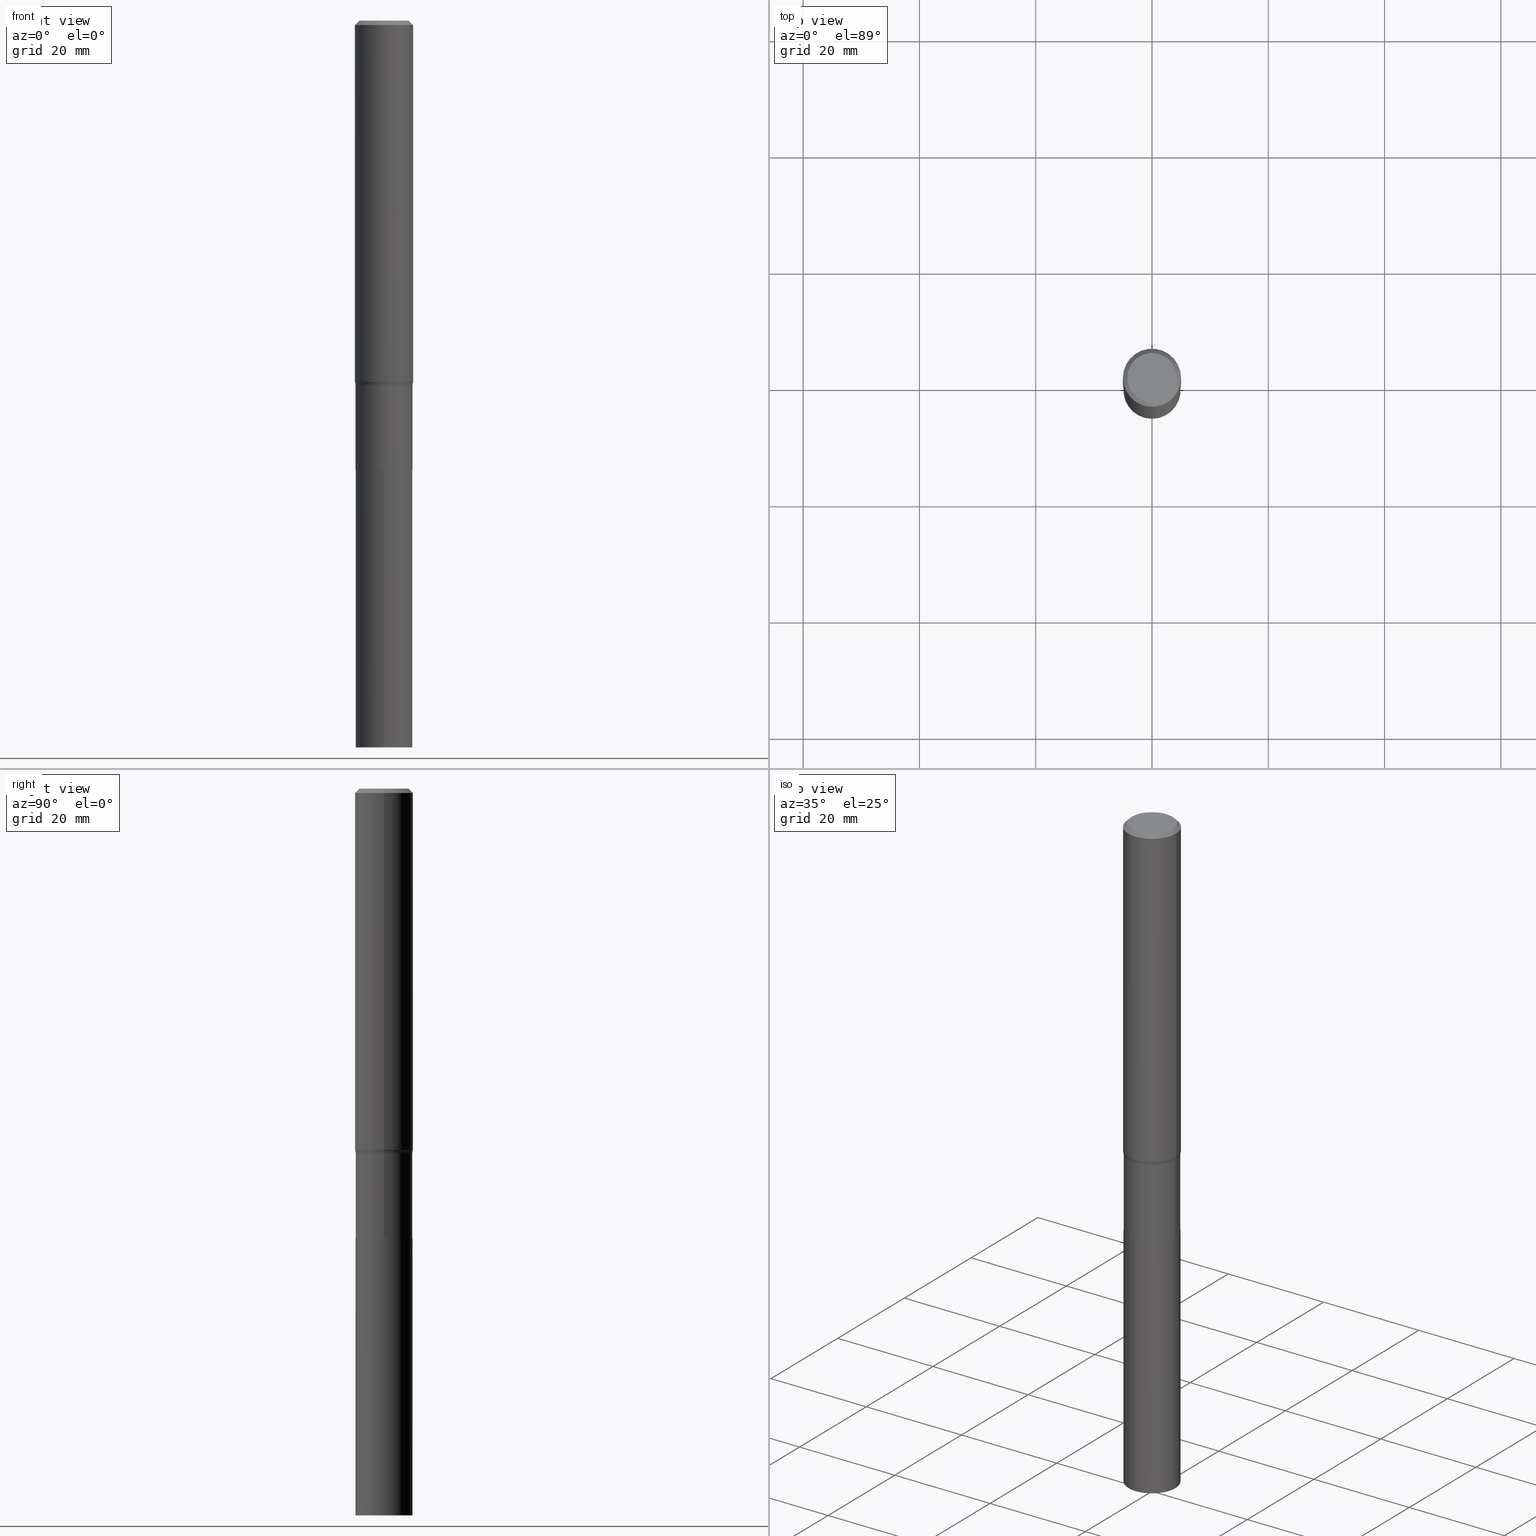
[diagram: canonical four-view strip — front | top / right | iso, engineering-drawing reading convention]
A machine part, canonical four-view strip (front | top / right | iso — engineering-drawing reading convention). The complete STEP part file that produces these views, byte-faithful:
ISO-10303-21;
HEADER;
FILE_DESCRIPTION (( 'STEP AP203' ),
    '1' );
FILE_NAME ('67886.STEP',
    '2024-04-19T16:55:15',
    ( '' ),
    ( '' ),
    'SwSTEP 2.0',
    'SolidWorks 2023',
    '' );
FILE_SCHEMA (( 'CONFIG_CONTROL_DESIGN' ));
ENDSEC;

DATA;
#1 = CARTESIAN_POINT ( 'NONE',  ( -0.1928999999999999049, -8.253980521373779940E-15, -2.471399999999999597 ) ) ;
#2 = EDGE_CURVE ( 'NONE', #200, #80, #162, .T. ) ;
#3 = DATE_TIME_ROLE ( 'classification_date' ) ;
#4 = CONICAL_SURFACE ( 'NONE', #232, 0.1968500000000000250, 0.7853981633974453924 ) ;
#5 = DATE_AND_TIME ( #225, #363 ) ;
#6 = EDGE_LOOP ( 'NONE', ( #153, #83 ) ) ;
#7 = CC_DESIGN_PERSON_AND_ORGANIZATION_ASSIGNMENT ( #259, #255, ( #191 ) ) ;
#8 = VECTOR ( 'NONE', #34, 39.37007874015748143 ) ;
#9 = ORIENTED_EDGE ( 'NONE', *, *, #411, .F. ) ;
#10 = ORIENTED_EDGE ( 'NONE', *, *, #228, .T. ) ;
#11 = DIRECTION ( 'NONE',  ( -2.445468806185136597E-29, 3.491481338843145583E-15, 1.000000000000000000 ) ) ;
#12 = DIRECTION ( 'NONE',  ( -2.445466196410267500E-29, 3.491485076189297312E-15, 1.000000000000000000 ) ) ;
#13 = ORIENTED_EDGE ( 'NONE', *, *, #2, .T. ) ;
#14 = VECTOR ( 'NONE', #81, 39.37007874015748143 ) ;
#15 = CIRCLE ( 'NONE', #302, 0.1968500000000003580 ) ;
#16 = VERTEX_POINT ( 'NONE', #230 ) ;
#17 = DIRECTION ( 'NONE',  ( -2.445466196410267781E-29, 3.491485076189296917E-15, 1.000000000000000000 ) ) ;
#18 = VERTEX_POINT ( 'NONE', #1 ) ;
#19 = LINE ( 'NONE', #169, #68 ) ;
#20 = DIRECTION ( 'NONE',  ( -2.445468806185136597E-29, 3.491481338843145583E-15, 1.000000000000000000 ) ) ;
#21 = VERTEX_POINT ( 'NONE', #295 ) ;
#22 = CARTESIAN_POINT ( 'NONE',  ( 7.439849749057039047E-29, -1.062213367716249950E-14, -3.042299999999999560 ) ) ;
#23 = CIRCLE ( 'NONE', #369, 0.1968500000000000250 ) ;
#24 = CARTESIAN_POINT ( 'NONE',  ( 0.1968500000000000250, -1.477690918335233294E-15, -0.02952750000000018901 ) ) ;
#25 = EDGE_CURVE ( 'NONE', #16, #200, #340, .T. ) ;
#26 = DIRECTION ( 'NONE',  ( 1.000000000000000000, -6.982962677686265922E-15, 0.000000000000000000 ) ) ;
#27 =( NAMED_UNIT ( * ) PLANE_ANGLE_UNIT ( ) SI_UNIT ( $, .RADIAN. ) );
#28 = DIRECTION ( 'NONE',  ( -2.445468806185136597E-29, 3.491481338843145583E-15, 1.000000000000000000 ) ) ;
#29 = FACE_OUTER_BOUND ( 'NONE', #430, .T. ) ;
#30 = ADVANCED_FACE ( 'NONE', ( #339 ), #306, .F. ) ;
#31 = DIRECTION ( 'NONE',  ( -2.445468806185136597E-29, 3.491481338843145583E-15, 1.000000000000000000 ) ) ;
#32 = ADVANCED_FACE ( 'NONE', ( #115 ), #120, .T. ) ;
#33 = DIRECTION ( 'NONE',  ( -2.445468806185136597E-29, 3.491481338843145583E-15, 1.000000000000000000 ) ) ;
#34 = DIRECTION ( 'NONE',  ( -2.445468806185136877E-29, 3.491481338843145188E-15, 1.000000000000000000 ) ) ;
#35 = PRODUCT ( '67886', '67886', '', ( #218 ) ) ;
#36 = VECTOR ( 'NONE', #391, 39.37007874015748143 ) ;
#37 = APPROVAL_PERSON_ORGANIZATION ( #399, #299, #143 ) ;
#38 = ORIENTED_EDGE ( 'NONE', *, *, #187, .T. ) ;
#39 = DIRECTION ( 'NONE',  ( 1.000000000000000000, -6.982962677686267499E-15, 4.876294436782262290E-29 ) ) ;
#40 = CC_DESIGN_PERSON_AND_ORGANIZATION_ASSIGNMENT ( #358, #152, ( #303 ) ) ;
#41 = EDGE_LOOP ( 'NONE', ( #334, #199 ) ) ;
#42 = DESIGN_CONTEXT ( 'detailed design', #119, 'design' ) ;
#43 = DIRECTION ( 'NONE',  ( -2.445466196410267781E-29, 3.491485076189296917E-15, 1.000000000000000000 ) ) ;
#44 = CIRCLE ( 'NONE', #335, 0.1928999999999999881 ) ;
#45 = ORIENTED_EDGE ( 'NONE', *, *, #184, .T. ) ;
#46 = DIRECTION ( 'NONE',  ( 1.000000000000000000, -6.982962677686267499E-15, 4.876294436782262290E-29 ) ) ;
#47 = DIRECTION ( 'NONE',  ( 1.000000000000000000, -6.982962677686264344E-15, 4.883557194083112901E-29 ) ) ;
#48 = AXIS2_PLACEMENT_3D ( 'NONE', #367, #292, #39 ) ;
#49 = AXIS2_PLACEMENT_3D ( 'NONE', #90, #96, #26 ) ;
#50 = EDGE_CURVE ( 'NONE', #21, #104, #234, .T. ) ;
#51 = EDGE_LOOP ( 'NONE', ( #159, #268, #207, #226 ) ) ;
#52 = ORIENTED_EDGE ( 'NONE', *, *, #290, .F. ) ;
#53 = PLANE ( 'NONE',  #76 ) ;
#54 = CARTESIAN_POINT ( 'NONE',  ( 7.439849749057039047E-29, -1.062213367716249950E-14, -3.042299999999999560 ) ) ;
#55 = EDGE_CURVE ( 'NONE', #98, #21, #190, .T. ) ;
#56 = CARTESIAN_POINT ( 'NONE',  ( 7.439849749057039047E-29, -1.062213367716249950E-14, -3.042299999999999560 ) ) ;
#57 = DIRECTION ( 'NONE',  ( -2.445468806185136597E-29, 3.491481338843145583E-15, 1.000000000000000000 ) ) ;
#58 = CARTESIAN_POINT ( 'NONE',  ( 7.220858017463208610E-31, -1.030947152326916486E-16, -0.02952750000000018901 ) ) ;
#59 = EDGE_CURVE ( 'NONE', #77, #18, #130, .T. ) ;
#60 = CIRCLE ( 'NONE', #327, 0.1923999999999999877 ) ;
#61 = LOCAL_TIME ( 12, 55, 15.00000000000000000, #66 ) ;
#62 = CARTESIAN_POINT ( 'NONE',  ( -0.1923999999999999877, -9.255049453560068999E-15, -3.042299999999999560 ) ) ;
#63 = FACE_OUTER_BOUND ( 'NONE', #6, .T. ) ;
#64 = ORIENTED_EDGE ( 'NONE', *, *, #265, .T. ) ;
#65 = DIRECTION ( 'NONE',  ( 1.000000000000000000, -6.982962677686267499E-15, 0.000000000000000000 ) ) ;
#66 = COORDINATED_UNIVERSAL_TIME_OFFSET ( 5, 0, .BEHIND. ) ;
#67 = CARTESIAN_POINT ( 'NONE',  ( 7.438627014653946245E-29, -1.062038793649307721E-14, -3.041799999999999393 ) ) ;
#68 = VECTOR ( 'NONE', #345, 39.37007874015748143 ) ;
#69 = CIRCLE ( 'NONE', #49, 0.1968500000000000250 ) ;
#70 = CALENDAR_DATE ( 2024, 19, 4 ) ;
#71 = ADVANCED_FACE ( 'NONE', ( #237 ), #350, .T. ) ;
#72 = MANIFOLD_SOLID_BREP ( 'Body-Move/Copy2[1]', #223 ) ;
#73 = SHAPE_DEFINITION_REPRESENTATION ( #331, #193 ) ;
#74 = PERSON_AND_ORGANIZATION ( #312, #396 ) ;
#75 = APPROVAL_DATE_TIME ( #254, #299 ) ;
#76 = AXIS2_PLACEMENT_3D ( 'NONE', #22, #449, #209 ) ;
#77 = VERTEX_POINT ( 'NONE', #458 ) ;
#78 = AXIS2_PLACEMENT_3D ( 'NONE', #454, #236, #137 ) ;
#79 = EDGE_CURVE ( 'NONE', #459, #18, #149, .T. ) ;
#80 = VERTEX_POINT ( 'NONE', #24 ) ;
#81 = DIRECTION ( 'NONE',  ( 0.7071067811865454633, -7.319954787623248157E-15, -0.7071067811865495711 ) ) ;
#82 = ORIENTED_EDGE ( 'NONE', *, *, #59, .F. ) ;
#83 = ORIENTED_EDGE ( 'NONE', *, *, #146, .F. ) ;
#84 = ORIENTED_EDGE ( 'NONE', *, *, #55, .T. ) ;
#85 = ADVANCED_FACE ( 'NONE', ( #29 ), #402, .F. ) ;
#86 = AXIS2_PLACEMENT_3D ( 'NONE', #361, #328, #461 ) ;
#87 = EDGE_LOOP ( 'NONE', ( #417, #466, #38, #298 ) ) ;
#88 = DIRECTION ( 'NONE',  ( -6.982962677686265133E-15, -1.000000000000000000, 2.832398127179122126E-15 ) ) ;
#89 = ORIENTED_EDGE ( 'NONE', *, *, #278, .T. ) ;
#90 = CARTESIAN_POINT ( 'NONE',  ( 7.220858017463208610E-31, -1.030947152326916486E-16, -0.02952750000000018901 ) ) ;
#91 = CARTESIAN_POINT ( 'NONE',  ( -1.347013500525606121E-15, -0.1929000000000105908, -3.042299999999998672 ) ) ;
#92 = ADVANCED_FACE ( 'NONE', ( #313 ), #239, .T. ) ;
#93 = FACE_OUTER_BOUND ( 'NONE', #372, .T. ) ;
#94 = VECTOR ( 'NONE', #309, 39.37007874015748143 ) ;
#95 = DIRECTION ( 'NONE',  ( 2.445468806185136597E-29, -3.491481338843145583E-15, -1.000000000000000000 ) ) ;
#96 = DIRECTION ( 'NONE',  ( -2.445468806185136597E-29, 3.491481338843145583E-15, 1.000000000000000000 ) ) ;
#97 = EDGE_CURVE ( 'NONE', #264, #194, #311, .T. ) ;
#98 = VERTEX_POINT ( 'NONE', #270 ) ;
#99 = DIRECTION ( 'NONE',  ( -6.982962677686265133E-15, -1.000000000000000000, 5.664796254358244252E-15 ) ) ;
#100 = DIRECTION ( 'NONE',  ( -6.982962677686265133E-15, -1.000000000000000000, 2.832398127179122126E-15 ) ) ;
#101 = CC_DESIGN_DATE_AND_TIME_ASSIGNMENT ( #5, #431, ( #189 ) ) ;
#102 = CARTESIAN_POINT ( 'NONE',  ( -7.432330705901042928E-29, -4.506078891942200723E-14, -4.921300000000000452 ) ) ;
#103 = DIRECTION ( 'NONE',  ( 7.105427357601001859E-15, 1.000000000000000000, -3.491481338843145583E-15 ) ) ;
#104 = VERTEX_POINT ( 'NONE', #244 ) ;
#105 = APPROVAL_DATE_TIME ( #183, #428 ) ;
#106 = AXIS2_PLACEMENT_3D ( 'NONE', #165, #341, #288 ) ;
#107 = APPROVAL_STATUS ( 'not_yet_approved' ) ;
#108 = CARTESIAN_POINT ( 'NONE',  ( 1.370636937281307327E-15, 0.1928999999999893578, -3.042300000000000004 ) ) ;
#109 = ADVANCED_FACE ( 'NONE', ( #243 ), #368, .F. ) ;
#110 = COORDINATED_UNIVERSAL_TIME_OFFSET ( 5, 0, .BEHIND. ) ;
#111 = EDGE_LOOP ( 'NONE', ( #160, #231, #321, #263 ) ) ;
#112 = CC_DESIGN_PERSON_AND_ORGANIZATION_ASSIGNMENT ( #291, #401, ( #189 ) ) ;
#113 = ORIENTED_EDGE ( 'NONE', *, *, #347, .F. ) ;
#114 = ADVANCED_FACE ( 'NONE', ( #381 ), #4, .T. ) ;
#115 = FACE_OUTER_BOUND ( 'NONE', #229, .T. ) ;
#116 = ORIENTED_EDGE ( 'NONE', *, *, #187, .F. ) ;
#117 = EDGE_CURVE ( 'NONE', #459, #123, #432, .T. ) ;
#118 = ORIENTED_EDGE ( 'NONE', *, *, #25, .T. ) ;
#119 = APPLICATION_CONTEXT ( 'configuration controlled 3d designs of mechanical parts and assemblies' ) ;
#120 = CYLINDRICAL_SURFACE ( 'NONE', #282, 0.1928999999999999881 ) ;
#121 = ORIENTED_EDGE ( 'NONE', *, *, #265, .F. ) ;
#122 = LOCAL_TIME ( 12, 55, 15.00000000000000000, #110 ) ;
#123 = VERTEX_POINT ( 'NONE', #343 ) ;
#124 = DIRECTION ( 'NONE',  ( -2.445468806185136877E-29, 3.491481338843145188E-15, 1.000000000000000000 ) ) ;
#125 = DIRECTION ( 'NONE',  ( 0.7071067811864267805, -2.468850131080992517E-15, 0.7071067811866682540 ) ) ;
#126 = DIRECTION ( 'NONE',  ( -2.445468806185136597E-29, 3.491481338843145583E-15, 1.000000000000000000 ) ) ;
#127 = CARTESIAN_POINT ( 'NONE',  ( 0.1968500000000001915, -1.374596203102542989E-15, 9.598753983154309266E-30 ) ) ;
#128 = DIRECTION ( 'NONE',  ( -6.982962677686265133E-15, -1.000000000000000000, 2.832398127179122126E-15 ) ) ;
#129 = ORIENTED_EDGE ( 'NONE', *, *, #468, .F. ) ;
#130 = CIRCLE ( 'NONE', #140, 0.1928999999999999049 ) ;
#131 = DIRECTION ( 'NONE',  ( 1.000000000000000000, -6.982962677686267499E-15, 0.000000000000000000 ) ) ;
#132 = AXIS2_PLACEMENT_3D ( 'NONE', #58, #211, #457 ) ;
#133 = EDGE_CURVE ( 'NONE', #104, #77, #414, .T. ) ;
#134 = CARTESIAN_POINT ( 'NONE',  ( 6.043731607605946476E-29, -8.628846980816948628E-15, -2.471399999999999597 ) ) ;
#135 = DIRECTION ( 'NONE',  ( 0.000000000000000000, 0.000000000000000000, 1.000000000000000000 ) ) ;
#136 = CARTESIAN_POINT ( 'NONE',  ( -0.1928999999999999881, -8.253980521373778363E-15, -3.041799999999999393 ) ) ;
#137 = DIRECTION ( 'NONE',  ( -6.982962677686265133E-15, -1.000000000000000000, 2.832398127179122126E-15 ) ) ;
#138 = DIRECTION ( 'NONE',  ( 1.000000000000000000, -6.982962677686266711E-15, 0.000000000000000000 ) ) ;
#139 = ORIENTED_EDGE ( 'NONE', *, *, #416, .F. ) ;
#140 = AXIS2_PLACEMENT_3D ( 'NONE', #163, #208, #131 ) ;
#141 = CC_DESIGN_APPROVAL ( #364, ( #303 ) ) ;
#142 = CARTESIAN_POINT ( 'NONE',  ( 1.203488073211193522E-28, -1.718263413532219501E-14, -4.921300000000000452 ) ) ;
#143 = APPROVAL_ROLE ( '' ) ;
#144 = ADVANCED_FACE ( 'NONE', ( #348 ), #53, .F. ) ;
#145 = ORIENTED_EDGE ( 'NONE', *, *, #228, .F. ) ;
#146 = EDGE_CURVE ( 'NONE', #405, #264, #362, .T. ) ;
#147 = COORDINATED_UNIVERSAL_TIME_OFFSET ( 5, 0, .BEHIND. ) ;
#148 = FACE_OUTER_BOUND ( 'NONE', #111, .T. ) ;
#149 = CIRCLE ( 'NONE', #174, 0.08000000000000000167 ) ;
#150 = EDGE_CURVE ( 'NONE', #194, #410, #437, .T. ) ;
#151 = COORDINATED_UNIVERSAL_TIME_OFFSET ( 5, 0, .BEHIND. ) ;
#152 = PERSON_AND_ORGANIZATION_ROLE ( 'creator' ) ;
#153 = ORIENTED_EDGE ( 'NONE', *, *, #269, .F. ) ;
#154 = ORIENTED_EDGE ( 'NONE', *, *, #198, .T. ) ;
#155 = VERTEX_POINT ( 'NONE', #136 ) ;
#156 = CIRCLE ( 'NONE', #462, 0.08000000000000000167 ) ;
#157 = DIRECTION ( 'NONE',  ( 6.982962677686265922E-15, 1.000000000000000000, -3.491485076189297312E-15 ) ) ;
#158 = DIRECTION ( 'NONE',  ( 1.000000000000000000, -6.982962677686266711E-15, 0.000000000000000000 ) ) ;
#159 = ORIENTED_EDGE ( 'NONE', *, *, #269, .T. ) ;
#160 = ORIENTED_EDGE ( 'NONE', *, *, #337, .T. ) ;
#161 = CARTESIAN_POINT ( 'NONE',  ( 1.370636937281330401E-15, 0.1928999999999828074, -4.921300000000002228 ) ) ;
#162 = LINE ( 'NONE', #374, #14 ) ;
#163 = CARTESIAN_POINT ( 'NONE',  ( 6.043731607605946476E-29, -8.628846980816948628E-15, -2.471399999999999597 ) ) ;
#164 = CARTESIAN_POINT ( 'NONE',  ( 7.220858017463208610E-31, -1.030947152326916486E-16, -0.02952750000000018901 ) ) ;
#165 = CARTESIAN_POINT ( 'NONE',  ( -5.008488096090108951E-47, 7.150793614331948590E-33, 2.048068690724054183E-18 ) ) ;
#166 = AXIS2_PLACEMENT_3D ( 'NONE', #247, #11, #46 ) ;
#167 = CARTESIAN_POINT ( 'NONE',  ( 0.1928999999999999326, -1.347013500525680471E-15, 9.406145000510357801E-30 ) ) ;
#168 = APPLICATION_CONTEXT ( 'configuration controlled 3d designs of mechanical parts and assemblies' ) ;
#169 = CARTESIAN_POINT ( 'NONE',  ( -0.1928999999999999326, 1.370636937281232780E-15, -9.488625789101710361E-30 ) ) ;
#170 =( NAMED_UNIT ( * ) SI_UNIT ( $, .STERADIAN. ) SOLID_ANGLE_UNIT ( ) );
#171 = ORIENTED_EDGE ( 'NONE', *, *, #50, .T. ) ;
#172 = CARTESIAN_POINT ( 'NONE',  ( 0.2728999999999998649, -1.053449749555752977E-14, -2.471399999999999597 ) ) ;
#173 = CARTESIAN_POINT ( 'NONE',  ( 0.000000000000000000, 0.000000000000000000, 0.000000000000000000 ) ) ;
#174 = AXIS2_PLACEMENT_3D ( 'NONE', #355, #103, #397 ) ;
#175 = VECTOR ( 'NONE', #253, 39.37007874015748143 ) ;
#176 = ORIENTED_EDGE ( 'NONE', *, *, #392, .F. ) ;
#177 = DIRECTION ( 'NONE',  ( -6.982962677686266711E-15, -1.000000000000000000, 3.491481338843145583E-15 ) ) ;
#178 = DIRECTION ( 'NONE',  ( -2.445466196410267220E-29, 3.491485076189297312E-15, 1.000000000000000000 ) ) ;
#179 = PLANE ( 'NONE',  #106 ) ;
#180 = CARTESIAN_POINT ( 'NONE',  ( 6.043731607605946476E-29, -8.628846980816948628E-15, -2.471399999999999597 ) ) ;
#181 = CYLINDRICAL_SURFACE ( 'NONE', #233, 0.1968500000000001915 ) ;
#182 = DIRECTION ( 'NONE',  ( 1.000000000000000000, -6.982962677686266711E-15, 4.876176775795935793E-29 ) ) ;
#183 = DATE_AND_TIME ( #400, #267 ) ;
#184 = EDGE_CURVE ( 'NONE', #155, #18, #19, .T. ) ;
#185 = CIRCLE ( 'NONE', #86, 0.1928999999999999881 ) ;
#186 = APPROVAL_ROLE ( '' ) ;
#187 = EDGE_CURVE ( 'NONE', #123, #77, #156, .T. ) ;
#188 = DIRECTION ( 'NONE',  ( 1.000000000000000000, -6.982962677686264344E-15, 0.000000000000000000 ) ) ;
#189 = PRODUCT_DEFINITION ( 'UNKNOWN', '', #303, #42 ) ;
#190 = CIRCLE ( 'NONE', #195, 0.1923999999999999877 ) ;
#191 = SECURITY_CLASSIFICATION ( '', '', #217 ) ;
#192 = PERSON_AND_ORGANIZATION ( #312, #396 ) ;
#193 = ADVANCED_BREP_SHAPE_REPRESENTATION ( '67886', ( #72, #376, #249 ), #294 ) ;
#194 = VERTEX_POINT ( 'NONE', #246 ) ;
#195 = AXIS2_PLACEMENT_3D ( 'NONE', #54, #387, #158 ) ;
#196 = DIRECTION ( 'NONE',  ( -2.445466196410267781E-29, 3.491485076189296917E-15, 1.000000000000000000 ) ) ;
#197 = ORIENTED_EDGE ( 'NONE', *, *, #25, .F. ) ;
#198 = EDGE_CURVE ( 'NONE', #123, #80, #385, .T. ) ;
#199 = ORIENTED_EDGE ( 'NONE', *, *, #443, .T. ) ;
#200 = VERTEX_POINT ( 'NONE', #272 ) ;
#201 = LINE ( 'NONE', #62, #175 ) ;
#202 = DIRECTION ( 'NONE',  ( -6.982962677686265133E-15, -1.000000000000000000, 5.664796254358244252E-15 ) ) ;
#203 = DIRECTION ( 'NONE',  ( -1.000000000000000000, 6.982962677686265922E-15, 0.000000000000000000 ) ) ;
#204 = VECTOR ( 'NONE', #12, 39.37007874015748143 ) ;
#205 = CC_DESIGN_SECURITY_CLASSIFICATION ( #191, ( #303 ) ) ;
#206 = ADVANCED_FACE ( 'NONE', ( #93 ), #279, .T. ) ;
#207 = ORIENTED_EDGE ( 'NONE', *, *, #150, .F. ) ;
#208 = DIRECTION ( 'NONE',  ( -2.445468806185136597E-29, 3.491481338843145583E-15, 1.000000000000000000 ) ) ;
#209 = DIRECTION ( 'NONE',  ( 1.000000000000000000, -6.982962677686265922E-15, 4.876176775795935793E-29 ) ) ;
#210 = DIRECTION ( 'NONE',  ( 1.000000000000000000, -6.982962677686269866E-15, 0.000000000000000000 ) ) ;
#211 = DIRECTION ( 'NONE',  ( 2.445468806185136597E-29, -3.491481338843145583E-15, -1.000000000000000000 ) ) ;
#212 = AXIS2_PLACEMENT_3D ( 'NONE', #273, #57, #453 ) ;
#213 = FACE_OUTER_BOUND ( 'NONE', #344, .T. ) ;
#214 = DIRECTION ( 'NONE',  ( 1.000000000000000000, -6.982962677686266711E-15, 0.000000000000000000 ) ) ;
#215 =( LENGTH_UNIT ( ) NAMED_UNIT ( * ) SI_UNIT ( $, .METRE. ) );
#216 = EDGE_LOOP ( 'NONE', ( #64, #45, #82, #346 ) ) ;
#217 = SECURITY_CLASSIFICATION_LEVEL ( 'unclassified' ) ;
#218 = MECHANICAL_CONTEXT ( 'NONE', #168, 'mechanical' ) ;
#219 = DIRECTION ( 'NONE',  ( 1.000000000000000000, -6.982962677686267499E-15, 4.876176775795936353E-29 ) ) ;
#220 = PRODUCT_RELATED_PRODUCT_CATEGORY ( 'detail', '', ( #35 ) ) ;
#221 = DIRECTION ( 'NONE',  ( -2.445468806185136597E-29, 3.491481338843145583E-15, 1.000000000000000000 ) ) ;
#222 = CARTESIAN_POINT ( 'NONE',  ( 7.439849749057039047E-29, -1.062213367716249950E-14, -3.042299999999999560 ) ) ;
#223 = CLOSED_SHELL ( 'NONE', ( #310, #441, #32, #30 ) ) ;
#224 = AXIS2_PLACEMENT_3D ( 'NONE', #134, #421, #65 ) ;
#225 = CALENDAR_DATE ( 2024, 19, 4 ) ;
#226 = ORIENTED_EDGE ( 'NONE', *, *, #97, .F. ) ;
#227 = DIRECTION ( 'NONE',  ( 1.000000000000000000, -6.982962677686266711E-15, 4.876176775795935793E-29 ) ) ;
#228 = EDGE_CURVE ( 'NONE', #155, #104, #44, .T. ) ;
#229 = EDGE_LOOP ( 'NONE', ( #52, #388, #366, #300 ) ) ;
#230 = CARTESIAN_POINT ( 'NONE',  ( -0.1673224999999999851, 1.219954130253505263E-15, 4.096137381439757534E-18 ) ) ;
#231 = ORIENTED_EDGE ( 'NONE', *, *, #468, .T. ) ;
#232 = AXIS2_PLACEMENT_3D ( 'NONE', #164, #95, #203 ) ;
#233 = AXIS2_PLACEMENT_3D ( 'NONE', #373, #28, #182 ) ;
#234 = LINE ( 'NONE', #447, #266 ) ;
#235 = ORIENTED_EDGE ( 'NONE', *, *, #184, .F. ) ;
#236 = DIRECTION ( 'NONE',  ( -2.445466196410267781E-29, 3.491485076189296917E-15, 1.000000000000000000 ) ) ;
#237 = FACE_OUTER_BOUND ( 'NONE', #284, .T. ) ;
#238 = ADVANCED_FACE ( 'NONE', ( #148 ), #351, .T. ) ;
#239 = CYLINDRICAL_SURFACE ( 'NONE', #407, 0.1928999999999999326 ) ;
#240 = FACE_OUTER_BOUND ( 'NONE', #336, .T. ) ;
#241 = CARTESIAN_POINT ( 'NONE',  ( 5.983017088185907655E-29, -8.542162738100076875E-15, -2.446572646133748030 ) ) ;
#242 = AXIS2_PLACEMENT_3D ( 'NONE', #142, #330, #202 ) ;
#243 = FACE_OUTER_BOUND ( 'NONE', #87, .T. ) ;
#244 = CARTESIAN_POINT ( 'NONE',  ( 0.1928999999999999881, -1.196740143701875827E-14, -3.041799999999999393 ) ) ;
#245 = CARTESIAN_POINT ( 'NONE',  ( 7.439849749057039047E-29, -1.062213367716249950E-14, -3.042299999999999560 ) ) ;
#246 = CARTESIAN_POINT ( 'NONE',  ( -1.347013500525606121E-15, -0.1929000000000105908, -3.042299999999998672 ) ) ;
#247 = CARTESIAN_POINT ( 'NONE',  ( -1.001697619218021790E-46, 1.430158722866389718E-32, 4.096137381448108366E-18 ) ) ;
#248 = AXIS2_PLACEMENT_3D ( 'NONE', #180, #317, #47 ) ;
#249 = AXIS2_PLACEMENT_3D ( 'NONE', #173, #135, #275 ) ;
#250 = ADVANCED_FACE ( 'NONE', ( #240 ), #179, .F. ) ;
#251 = DIRECTION ( 'NONE',  ( -0.7071067811865454633, 2.468850131082235367E-15, -0.7071067811865495711 ) ) ;
#252 = CC_DESIGN_DATE_AND_TIME_ASSIGNMENT ( #297, #3, ( #191 ) ) ;
#253 = DIRECTION ( 'NONE',  ( -0.7071067811864267805, 7.493145998869918709E-15, 0.7071067811866682540 ) ) ;
#254 = DATE_AND_TIME ( #426, #464 ) ;
#255 = PERSON_AND_ORGANIZATION_ROLE ( 'classification_officer' ) ;
#256 = AXIS2_PLACEMENT_3D ( 'NONE', #375, #412, #99 ) ;
#257 = CC_DESIGN_APPROVAL ( #428, ( #189 ) ) ;
#258 = DATE_AND_TIME ( #285, #122 ) ;
#259 = PERSON_AND_ORGANIZATION ( #312, #396 ) ;
#260 = EDGE_LOOP ( 'NONE', ( #380, #262 ) ) ;
#261 = VECTOR ( 'NONE', #251, 39.37007874015748143 ) ;
#262 = ORIENTED_EDGE ( 'NONE', *, *, #55, .F. ) ;
#263 = ORIENTED_EDGE ( 'NONE', *, *, #198, .F. ) ;
#264 = VERTEX_POINT ( 'NONE', #434 ) ;
#265 = EDGE_CURVE ( 'NONE', #104, #155, #185, .T. ) ;
#266 = VECTOR ( 'NONE', #125, 39.37007874015748143 ) ;
#267 = LOCAL_TIME ( 12, 55, 15.00000000000000000, #147 ) ;
#268 = ORIENTED_EDGE ( 'NONE', *, *, #290, .T. ) ;
#269 = EDGE_CURVE ( 'NONE', #264, #405, #438, .T. ) ;
#270 = CARTESIAN_POINT ( 'NONE',  ( -0.1923999999999999877, -9.252400226385957009E-15, -3.042299999999999560 ) ) ;
#271 = DIRECTION ( 'NONE',  ( 1.000000000000000000, -6.982962677686266711E-15, 0.000000000000000000 ) ) ;
#272 = CARTESIAN_POINT ( 'NONE',  ( 0.1673224999999999851, -1.300749711163072397E-15, 4.096137381456741925E-18 ) ) ;
#273 = CARTESIAN_POINT ( 'NONE',  ( 6.043731607605946476E-29, -8.628846980816948628E-15, -2.471399999999999597 ) ) ;
#274 = AXIS2_PLACEMENT_3D ( 'NONE', #56, #31, #214 ) ;
#275 = DIRECTION ( 'NONE',  ( 1.000000000000000000, 0.000000000000000000, 0.000000000000000000 ) ) ;
#276 = DIRECTION ( 'NONE',  ( -2.445468806185136597E-29, 3.491481338843145583E-15, 1.000000000000000000 ) ) ;
#277 = CARTESIAN_POINT ( 'NONE',  ( -0.1968500000000000250, 1.271501487869850120E-15, -0.02952750000000018901 ) ) ;
#278 = EDGE_CURVE ( 'NONE', #21, #98, #60, .T. ) ;
#279 = CYLINDRICAL_SURFACE ( 'NONE', #378, 0.1928999999999999326 ) ;
#280 = LINE ( 'NONE', #277, #261 ) ;
#281 = ORIENTED_EDGE ( 'NONE', *, *, #360, .T. ) ;
#282 = AXIS2_PLACEMENT_3D ( 'NONE', #409, #196, #88 ) ;
#283 = CIRCLE ( 'NONE', #166, 0.1673224999999999851 ) ;
#284 = EDGE_LOOP ( 'NONE', ( #9, #84, #171, #145 ) ) ;
#285 = CALENDAR_DATE ( 2024, 19, 4 ) ;
#286 = ORIENTED_EDGE ( 'NONE', *, *, #117, .T. ) ;
#287 = DIRECTION ( 'NONE',  ( -2.445468806185136597E-29, 3.491481338843145583E-15, 1.000000000000000000 ) ) ;
#288 = DIRECTION ( 'NONE',  ( -1.000000000000000000, 6.982962677686265922E-15, -4.876176775795935793E-29 ) ) ;
#289 = PERSON_AND_ORGANIZATION ( #312, #396 ) ;
#290 = EDGE_CURVE ( 'NONE', #405, #410, #413, .T. ) ;
#291 = PERSON_AND_ORGANIZATION ( #312, #396 ) ;
#292 = DIRECTION ( 'NONE',  ( -2.445468806185136597E-29, 3.491481338843145583E-15, 1.000000000000000000 ) ) ;
#293 = AXIS2_PLACEMENT_3D ( 'NONE', #456, #221, #227 ) ;
#294 =( GEOMETRIC_REPRESENTATION_CONTEXT ( 3 ) GLOBAL_UNCERTAINTY_ASSIGNED_CONTEXT ( ( #320 ) ) GLOBAL_UNIT_ASSIGNED_CONTEXT ( ( #354, #27, #170 ) ) REPRESENTATION_CONTEXT ( 'NONE', 'WORKASPACE' ) );
#295 = CARTESIAN_POINT ( 'NONE',  ( 0.1923999999999999877, -1.196565569634933756E-14, -3.042299999999999560 ) ) ;
#296 = CARTESIAN_POINT ( 'NONE',  ( -0.1968500000000003858, -7.143459362756318299E-15, -2.446572646133748030 ) ) ;
#297 = DATE_AND_TIME ( #70, #61 ) ;
#298 = ORIENTED_EDGE ( 'NONE', *, *, #59, .T. ) ;
#299 = APPROVAL ( #435, 'UNSPECIFIED' ) ;
#300 = ORIENTED_EDGE ( 'NONE', *, *, #443, .F. ) ;
#301 = CLOSED_SHELL ( 'NONE', ( #419, #114, #238, #85, #92, #206, #109, #329, #425, #250, #144, #71 ) ) ;
#302 = AXIS2_PLACEMENT_3D ( 'NONE', #322, #20, #452 ) ;
#303 = PRODUCT_DEFINITION_FORMATION_WITH_SPECIFIED_SOURCE ( 'ANY', '', #35, .NOT_KNOWN. ) ;
#304 = ORIENTED_EDGE ( 'NONE', *, *, #411, .T. ) ;
#305 = ORIENTED_EDGE ( 'NONE', *, *, #117, .F. ) ;
#306 = PLANE ( 'NONE',  #395 ) ;
#307 = CONICAL_SURFACE ( 'NONE', #433, 0.1923999999999999877, 0.7853981633972775267 ) ;
#308 = CARTESIAN_POINT ( 'NONE',  ( 7.439849749057039047E-29, -1.062213367716249950E-14, -3.042299999999999560 ) ) ;
#309 = DIRECTION ( 'NONE',  ( -2.445468806185136877E-29, 3.491481338843145188E-15, 1.000000000000000000 ) ) ;
#310 = ADVANCED_FACE ( 'NONE', ( #460 ), #359, .T. ) ;
#311 = LINE ( 'NONE', #91, #204 ) ;
#312 = PERSON ( 'UNSPECIFIED', 'UNSPECIFIED', 'UNSPECIFIED', ('UNSPECIFIED'), ('UNSPECIFIED'), ('UNSPECIFIED') ) ;
#313 = FACE_OUTER_BOUND ( 'NONE', #216, .T. ) ;
#314 = CARTESIAN_POINT ( 'NONE',  ( 7.220858017463208610E-31, -1.030947152326916486E-16, -0.02952750000000018901 ) ) ;
#315 = AXIS2_PLACEMENT_3D ( 'NONE', #448, #17, #128 ) ;
#316 = DIRECTION ( 'NONE',  ( 1.000000000000000000, -6.982962677686265922E-15, 0.000000000000000000 ) ) ;
#317 = DIRECTION ( 'NONE',  ( -2.445468806185136597E-29, 3.491481338843145583E-15, 1.000000000000000000 ) ) ;
#318 = PLANE ( 'NONE',  #408 ) ;
#319 = EDGE_CURVE ( 'NONE', #16, #427, #280, .T. ) ;
#320 = UNCERTAINTY_MEASURE_WITH_UNIT (LENGTH_MEASURE( 1.000000000000000082E-05 ), #354, 'distance_accuracy_value', 'NONE');
#321 = ORIENTED_EDGE ( 'NONE', *, *, #360, .F. ) ;
#322 = CARTESIAN_POINT ( 'NONE',  ( 5.983017088185907655E-29, -8.542162738100076875E-15, -2.446572646133748030 ) ) ;
#323 = AXIS2_PLACEMENT_3D ( 'NONE', #241, #415, #210 ) ;
#324 = CONICAL_SURFACE ( 'NONE', #132, 0.1968500000000000250, 0.7853981633974453924 ) ;
#325 = APPROVAL_DATE_TIME ( #258, #364 ) ;
#326 = PERSON_AND_ORGANIZATION_ROLE ( 'design_supplier' ) ;
#327 = AXIS2_PLACEMENT_3D ( 'NONE', #308, #126, #271 ) ;
#328 = DIRECTION ( 'NONE',  ( -2.445468806185136597E-29, 3.491481338843145583E-15, 1.000000000000000000 ) ) ;
#329 = ADVANCED_FACE ( 'NONE', ( #213 ), #181, .T. ) ;
#330 = DIRECTION ( 'NONE',  ( -2.445466196410267781E-29, 3.491485076189296917E-15, 1.000000000000000000 ) ) ;
#331 = PRODUCT_DEFINITION_SHAPE ( 'NONE', 'NONE',  #189 ) ;
#332 = ORIENTED_EDGE ( 'NONE', *, *, #319, .T. ) ;
#333 = CARTESIAN_POINT ( 'NONE',  ( 7.439849749057039047E-29, -1.062213367716249950E-14, -3.042299999999999560 ) ) ;
#334 = ORIENTED_EDGE ( 'NONE', *, *, #150, .T. ) ;
#335 = AXIS2_PLACEMENT_3D ( 'NONE', #67, #33, #188 ) ;
#336 = EDGE_LOOP ( 'NONE', ( #118, #371 ) ) ;
#337 = EDGE_CURVE ( 'NONE', #123, #459, #15, .T. ) ;
#338 = DIRECTION ( 'NONE',  ( -2.445468806185136597E-29, 3.491481338843145583E-15, 1.000000000000000000 ) ) ;
#339 = FACE_OUTER_BOUND ( 'NONE', #41, .T. ) ;
#340 = CIRCLE ( 'NONE', #48, 0.1673224999999999851 ) ;
#341 = DIRECTION ( 'NONE',  ( 2.438088387897960049E-29, -3.491481338843145188E-15, -1.000000000000000000 ) ) ;
#342 = APPROVAL_PERSON_ORGANIZATION ( #394, #428, #365 ) ;
#343 = CARTESIAN_POINT ( 'NONE',  ( 0.1968500000000003858, -9.916758941202621639E-15, -2.446572646133748030 ) ) ;
#344 = EDGE_LOOP ( 'NONE', ( #129, #286, #154, #113 ) ) ;
#345 = DIRECTION ( 'NONE',  ( -2.445468806185136877E-29, 3.491481338843145188E-15, 1.000000000000000000 ) ) ;
#346 = ORIENTED_EDGE ( 'NONE', *, *, #133, .F. ) ;
#347 = EDGE_CURVE ( 'NONE', #427, #80, #69, .T. ) ;
#348 = FACE_OUTER_BOUND ( 'NONE', #260, .T. ) ;
#349 = CARTESIAN_POINT ( 'NONE',  ( -0.1968500000000000250, -2.923925351322623732E-15, -0.02952750000000018901 ) ) ;
#350 = CONICAL_SURFACE ( 'NONE', #274, 0.1923999999999999877, 0.7853981633972775267 ) ;
#351 = CYLINDRICAL_SURFACE ( 'NONE', #293, 0.1968500000000001915 ) ;
#352 = FACE_OUTER_BOUND ( 'NONE', #450, .T. ) ;
#353 = ORIENTED_EDGE ( 'NONE', *, *, #50, .F. ) ;
#354 =( CONVERSION_BASED_UNIT ( 'INCH', #382 ) LENGTH_UNIT ( ) NAMED_UNIT ( #406 ) );
#355 = CARTESIAN_POINT ( 'NONE',  ( -0.2728999999999998649, -6.689775854927636575E-15, -2.471399999999999597 ) ) ;
#356 = APPROVAL_STATUS ( 'not_yet_approved' ) ;
#357 = CARTESIAN_POINT ( 'NONE',  ( -0.1968500000000001915, 1.398703375343758577E-15, -9.682923725166790684E-30 ) ) ;
#358 = PERSON_AND_ORGANIZATION ( #312, #396 ) ;
#359 = CYLINDRICAL_SURFACE ( 'NONE', #451, 0.1928999999999999881 ) ;
#360 = EDGE_CURVE ( 'NONE', #80, #427, #23, .T. ) ;
#361 = CARTESIAN_POINT ( 'NONE',  ( 7.438627014653946245E-29, -1.062038793649307721E-14, -3.041799999999999393 ) ) ;
#362 = CIRCLE ( 'NONE', #256, 0.1928999999999999881 ) ;
#363 = LOCAL_TIME ( 12, 55, 15.00000000000000000, #463 ) ;
#364 = APPROVAL ( #107, 'UNSPECIFIED' ) ;
#365 = APPROVAL_ROLE ( '' ) ;
#366 = ORIENTED_EDGE ( 'NONE', *, *, #97, .T. ) ;
#367 = CARTESIAN_POINT ( 'NONE',  ( -1.001697619218021790E-46, 1.430158722866389718E-32, 4.096137381448108366E-18 ) ) ;
#368 = TOROIDAL_SURFACE ( 'NONE', #212, 0.2728999999999998649, 0.08000000000000000167 ) ;
#369 = AXIS2_PLACEMENT_3D ( 'NONE', #314, #445, #316 ) ;
#370 = DIRECTION ( 'NONE',  ( 2.445466196410267220E-29, -3.491485076189297312E-15, -1.000000000000000000 ) ) ;
#371 = ORIENTED_EDGE ( 'NONE', *, *, #392, .T. ) ;
#372 = EDGE_LOOP ( 'NONE', ( #235, #10, #390, #139 ) ) ;
#373 = CARTESIAN_POINT ( 'NONE',  ( 0.000000000000000000, 0.000000000000000000, 0.000000000000000000 ) ) ;
#374 = CARTESIAN_POINT ( 'NONE',  ( 0.1968500000000000250, -1.453583746094017706E-15, -0.02952750000000018901 ) ) ;
#375 = CARTESIAN_POINT ( 'NONE',  ( 1.203488073211193522E-28, -1.718263413532219501E-14, -4.921300000000000452 ) ) ;
#376 = MANIFOLD_SOLID_BREP ( 'Body-Move/Copy2[2]', #301 ) ;
#377 = CC_DESIGN_PERSON_AND_ORGANIZATION_ASSIGNMENT ( #192, #326, ( #303 ) ) ;
#378 = AXIS2_PLACEMENT_3D ( 'NONE', #398, #287, #219 ) ;
#379 = APPROVAL_PERSON_ORGANIZATION ( #74, #364, #186 ) ;
#380 = ORIENTED_EDGE ( 'NONE', *, *, #278, .F. ) ;
#381 = FACE_OUTER_BOUND ( 'NONE', #440, .T. ) ;
#382 = LENGTH_MEASURE_WITH_UNIT ( LENGTH_MEASURE( 0.02539999999999999897 ), #215 );
#383 = DIRECTION ( 'NONE',  ( 1.000000000000000000, -6.982962677686267499E-15, 4.876176775795936353E-29 ) ) ;
#384 = FACE_OUTER_BOUND ( 'NONE', #439, .T. ) ;
#385 = LINE ( 'NONE', #127, #422 ) ;
#386 = CARTESIAN_POINT ( 'NONE',  ( 1.370636937281353870E-15, 0.1928999999999893855, -3.042300000000000004 ) ) ;
#387 = DIRECTION ( 'NONE',  ( -2.445468806185136597E-29, 3.491481338843145583E-15, 1.000000000000000000 ) ) ;
#388 = ORIENTED_EDGE ( 'NONE', *, *, #146, .T. ) ;
#389 = DIRECTION ( 'NONE',  ( -6.982962677686265922E-15, -1.000000000000000000, 3.491485076189297312E-15 ) ) ;
#390 = ORIENTED_EDGE ( 'NONE', *, *, #133, .T. ) ;
#391 = DIRECTION ( 'NONE',  ( -2.445466196410267500E-29, 3.491485076189297312E-15, 1.000000000000000000 ) ) ;
#392 = EDGE_CURVE ( 'NONE', #200, #16, #283, .T. ) ;
#393 = PERSON_AND_ORGANIZATION_ROLE ( 'design_owner' ) ;
#394 = PERSON_AND_ORGANIZATION ( #312, #396 ) ;
#395 = AXIS2_PLACEMENT_3D ( 'NONE', #333, #370, #157 ) ;
#396 = ORGANIZATION ( 'UNSPECIFIED', 'UNSPECIFIED', '' ) ;
#397 = DIRECTION ( 'NONE',  ( -1.000000000000000000, 7.105427357600997914E-15, 0.000000000000000000 ) ) ;
#398 = CARTESIAN_POINT ( 'NONE',  ( 0.000000000000000000, 0.000000000000000000, 0.000000000000000000 ) ) ;
#399 = PERSON_AND_ORGANIZATION ( #312, #396 ) ;
#400 = CALENDAR_DATE ( 2024, 19, 4 ) ;
#401 = PERSON_AND_ORGANIZATION_ROLE ( 'creator' ) ;
#402 = TOROIDAL_SURFACE ( 'NONE', #248, 0.2728999999999998649, 0.08000000000000000167 ) ;
#403 = CC_DESIGN_APPROVAL ( #299, ( #191 ) ) ;
#404 = ORIENTED_EDGE ( 'NONE', *, *, #79, .T. ) ;
#405 = VERTEX_POINT ( 'NONE', #161 ) ;
#406 = DIMENSIONAL_EXPONENTS ( 1.000000000000000000, 0.000000000000000000, 0.000000000000000000, 0.000000000000000000, 0.000000000000000000, 0.000000000000000000, 0.000000000000000000 ) ;
#407 = AXIS2_PLACEMENT_3D ( 'NONE', #418, #276, #383 ) ;
#408 = AXIS2_PLACEMENT_3D ( 'NONE', #102, #178, #389 ) ;
#409 = CARTESIAN_POINT ( 'NONE',  ( 7.439849749057039047E-29, -1.062213367716249950E-14, -3.042299999999999560 ) ) ;
#410 = VERTEX_POINT ( 'NONE', #386 ) ;
#411 = EDGE_CURVE ( 'NONE', #98, #155, #201, .T. ) ;
#412 = DIRECTION ( 'NONE',  ( -2.445466196410267781E-29, 3.491485076189296917E-15, 1.000000000000000000 ) ) ;
#413 = LINE ( 'NONE', #108, #36 ) ;
#414 = LINE ( 'NONE', #167, #94 ) ;
#415 = DIRECTION ( 'NONE',  ( -2.445468806185136597E-29, 3.491481338843145583E-15, 1.000000000000000000 ) ) ;
#416 = EDGE_CURVE ( 'NONE', #18, #77, #423, .T. ) ;
#417 = ORIENTED_EDGE ( 'NONE', *, *, #79, .F. ) ;
#418 = CARTESIAN_POINT ( 'NONE',  ( 0.000000000000000000, 0.000000000000000000, 0.000000000000000000 ) ) ;
#419 = ADVANCED_FACE ( 'NONE', ( #352 ), #307, .T. ) ;
#420 = DIRECTION ( 'NONE',  ( 1.000000000000000000, -6.982962677686259611E-15, 0.000000000000000000 ) ) ;
#421 = DIRECTION ( 'NONE',  ( -2.445468806185136597E-29, 3.491481338843145583E-15, 1.000000000000000000 ) ) ;
#422 = VECTOR ( 'NONE', #124, 39.37007874015748143 ) ;
#423 = CIRCLE ( 'NONE', #224, 0.1928999999999999049 ) ;
#424 = ORIENTED_EDGE ( 'NONE', *, *, #319, .F. ) ;
#425 = ADVANCED_FACE ( 'NONE', ( #384 ), #324, .T. ) ;
#426 = CALENDAR_DATE ( 2024, 19, 4 ) ;
#427 = VERTEX_POINT ( 'NONE', #349 ) ;
#428 = APPROVAL ( #356, 'UNSPECIFIED' ) ;
#429 = LINE ( 'NONE', #357, #8 ) ;
#430 = EDGE_LOOP ( 'NONE', ( #305, #404, #442, #116 ) ) ;
#431 = DATE_TIME_ROLE ( 'creation_date' ) ;
#432 = CIRCLE ( 'NONE', #323, 0.1968500000000003580 ) ;
#433 = AXIS2_PLACEMENT_3D ( 'NONE', #245, #338, #138 ) ;
#434 = CARTESIAN_POINT ( 'NONE',  ( -1.347013500525560170E-15, -0.1929000000000171411, -4.921299999999999564 ) ) ;
#435 = APPROVAL_STATUS ( 'not_yet_approved' ) ;
#436 = ORIENTED_EDGE ( 'NONE', *, *, #2, .F. ) ;
#437 = CIRCLE ( 'NONE', #315, 0.1928999999999999881 ) ;
#438 = CIRCLE ( 'NONE', #242, 0.1928999999999999881 ) ;
#439 = EDGE_LOOP ( 'NONE', ( #436, #197, #332, #444 ) ) ;
#440 = EDGE_LOOP ( 'NONE', ( #176, #13, #281, #424 ) ) ;
#441 = ADVANCED_FACE ( 'NONE', ( #63 ), #318, .F. ) ;
#442 = ORIENTED_EDGE ( 'NONE', *, *, #416, .T. ) ;
#443 = EDGE_CURVE ( 'NONE', #410, #194, #446, .T. ) ;
#444 = ORIENTED_EDGE ( 'NONE', *, *, #347, .T. ) ;
#445 = DIRECTION ( 'NONE',  ( -2.445468806185136597E-29, 3.491481338843145583E-15, 1.000000000000000000 ) ) ;
#446 = CIRCLE ( 'NONE', #78, 0.1928999999999999881 ) ;
#447 = CARTESIAN_POINT ( 'NONE',  ( 0.1923999999999999877, -1.196565569634933756E-14, -3.042299999999999560 ) ) ;
#448 = CARTESIAN_POINT ( 'NONE',  ( 7.439849749057039047E-29, -1.062213367716249950E-14, -3.042299999999999560 ) ) ;
#449 = DIRECTION ( 'NONE',  ( -2.438088387897960049E-29, 3.491481338843145188E-15, 1.000000000000000000 ) ) ;
#450 = EDGE_LOOP ( 'NONE', ( #89, #304, #121, #353 ) ) ;
#451 = AXIS2_PLACEMENT_3D ( 'NONE', #222, #43, #100 ) ;
#452 = DIRECTION ( 'NONE',  ( 1.000000000000000000, -6.982962677686269866E-15, 0.000000000000000000 ) ) ;
#453 = DIRECTION ( 'NONE',  ( 1.000000000000000000, -6.982962677686264344E-15, 4.883557194083112901E-29 ) ) ;
#454 = CARTESIAN_POINT ( 'NONE',  ( 7.439849749057039047E-29, -1.062213367716249950E-14, -3.042299999999999560 ) ) ;
#455 = APPLICATION_PROTOCOL_DEFINITION ( 'international standard', 'config_control_design', 1994, #168 ) ;
#456 = CARTESIAN_POINT ( 'NONE',  ( 0.000000000000000000, 0.000000000000000000, 0.000000000000000000 ) ) ;
#457 = DIRECTION ( 'NONE',  ( -1.000000000000000000, 6.982962677686265922E-15, 0.000000000000000000 ) ) ;
#458 = CARTESIAN_POINT ( 'NONE',  ( 0.1928999999999999049, -9.975860481342629691E-15, -2.471399999999999597 ) ) ;
#459 = VERTEX_POINT ( 'NONE', #296 ) ;
#460 = FACE_OUTER_BOUND ( 'NONE', #51, .T. ) ;
#461 = DIRECTION ( 'NONE',  ( 1.000000000000000000, -6.982962677686264344E-15, 0.000000000000000000 ) ) ;
#462 = AXIS2_PLACEMENT_3D ( 'NONE', #172, #177, #420 ) ;
#463 = COORDINATED_UNIVERSAL_TIME_OFFSET ( 5, 0, .BEHIND. ) ;
#464 = LOCAL_TIME ( 12, 55, 15.00000000000000000, #151 ) ;
#465 = CC_DESIGN_PERSON_AND_ORGANIZATION_ASSIGNMENT ( #289, #393, ( #35 ) ) ;
#466 = ORIENTED_EDGE ( 'NONE', *, *, #337, .F. ) ;
#467 = APPLICATION_PROTOCOL_DEFINITION ( 'international standard', 'config_control_design', 1994, #119 ) ;
#468 = EDGE_CURVE ( 'NONE', #459, #427, #429, .T. ) ;
ENDSEC;
END-ISO-10303-21;
